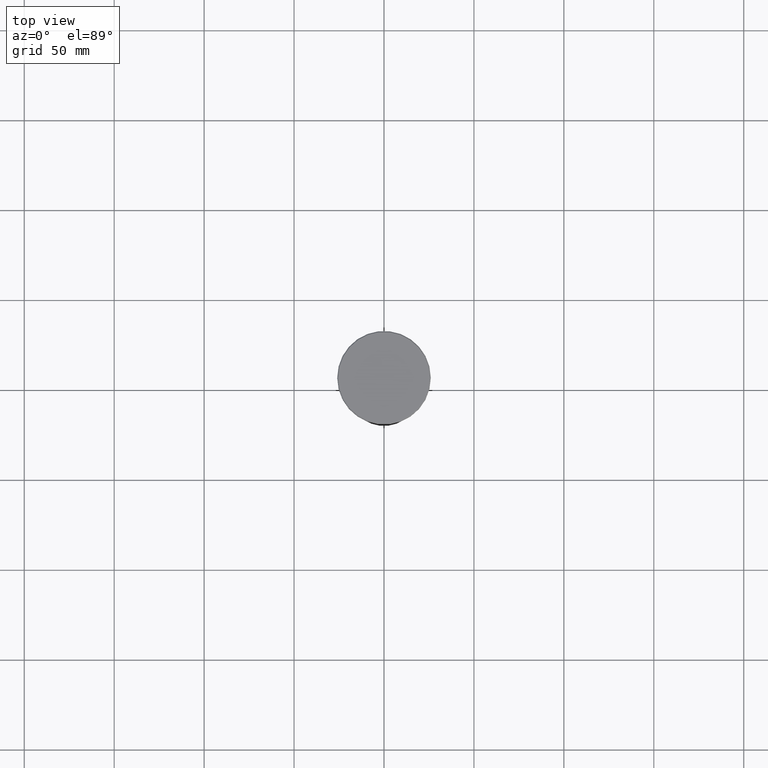
[diagram: clean part render]
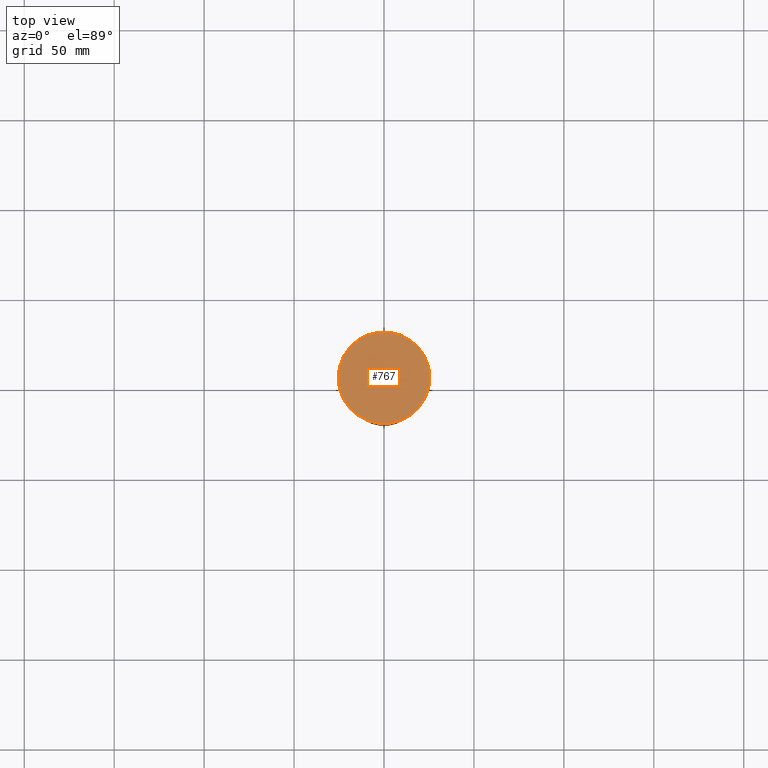
[diagram: same view with one face highlighted and labeled with its STEP entity id]
A machine part, top view. The second image highlights one B-rep face of the part: STEP entity #767.
In plain terms, the highlighted planar face has unit normal (0, -0, 1).
Its self-contained STEP definition (entity closure, byte-faithful):
#42 = CARTESIAN_POINT ( 'NONE',  ( 0.000000000000000000, 0.000000000000000000, 0.000000000000000000 ) ) ;
#106 = EDGE_LOOP ( 'NONE', ( #1182, #539 ) ) ;
#200 = DIRECTION ( 'NONE',  ( 1.000000000000000000, 0.000000000000000000, 0.000000000000000000 ) ) ;
#213 = CARTESIAN_POINT ( 'NONE',  ( -25.50000000000002487, 0.000000000000000000, 0.000000000000000000 ) ) ;
#219 = CARTESIAN_POINT ( 'NONE',  ( 25.50000000000002487, 3.153465507804435981E-15, 0.000000000000000000 ) ) ;
#227 = CIRCLE ( 'NONE', #349, 25.50000000000002487 ) ;
#248 = VERTEX_POINT ( 'NONE', #219 ) ;
#259 = DIRECTION ( 'NONE',  ( 1.000000000000000000, 0.000000000000000000, 0.000000000000000000 ) ) ;
#319 = DIRECTION ( 'NONE',  ( 1.000000000000000000, 0.000000000000000000, 0.000000000000000000 ) ) ;
#349 = AXIS2_PLACEMENT_3D ( 'NONE', #397, #857, #319 ) ;
#397 = CARTESIAN_POINT ( 'NONE',  ( 0.000000000000000000, 0.000000000000000000, 0.000000000000000000 ) ) ;
#439 = DIRECTION ( 'NONE',  ( -0.000000000000000000, -0.000000000000000000, 1.000000000000000000 ) ) ;
#480 = EDGE_CURVE ( 'NONE', #248, #728, #227, .T. ) ;
#505 = AXIS2_PLACEMENT_3D ( 'NONE', #795, #439, #259 ) ;
#539 = ORIENTED_EDGE ( 'NONE', *, *, #480, .T. ) ;
#584 = EDGE_CURVE ( 'NONE', #728, #248, #1170, .T. ) ;
#691 = DIRECTION ( 'NONE',  ( 0.000000000000000000, -0.000000000000000000, 1.000000000000000000 ) ) ;
#728 = VERTEX_POINT ( 'NONE', #213 ) ;
#767 = ADVANCED_FACE ( 'NONE', ( #1032 ), #866, .T. ) ;
#795 = CARTESIAN_POINT ( 'NONE',  ( 0.000000000000000000, 0.000000000000000000, 0.000000000000000000 ) ) ;
#857 = DIRECTION ( 'NONE',  ( -0.000000000000000000, -0.000000000000000000, 1.000000000000000000 ) ) ;
#862 = AXIS2_PLACEMENT_3D ( 'NONE', #42, #691, #200 ) ;
#866 = PLANE ( 'NONE',  #862 ) ;
#1032 = FACE_OUTER_BOUND ( 'NONE', #106, .T. ) ;
#1170 = CIRCLE ( 'NONE', #505, 25.50000000000002487 ) ;
#1182 = ORIENTED_EDGE ( 'NONE', *, *, #584, .T. ) ;